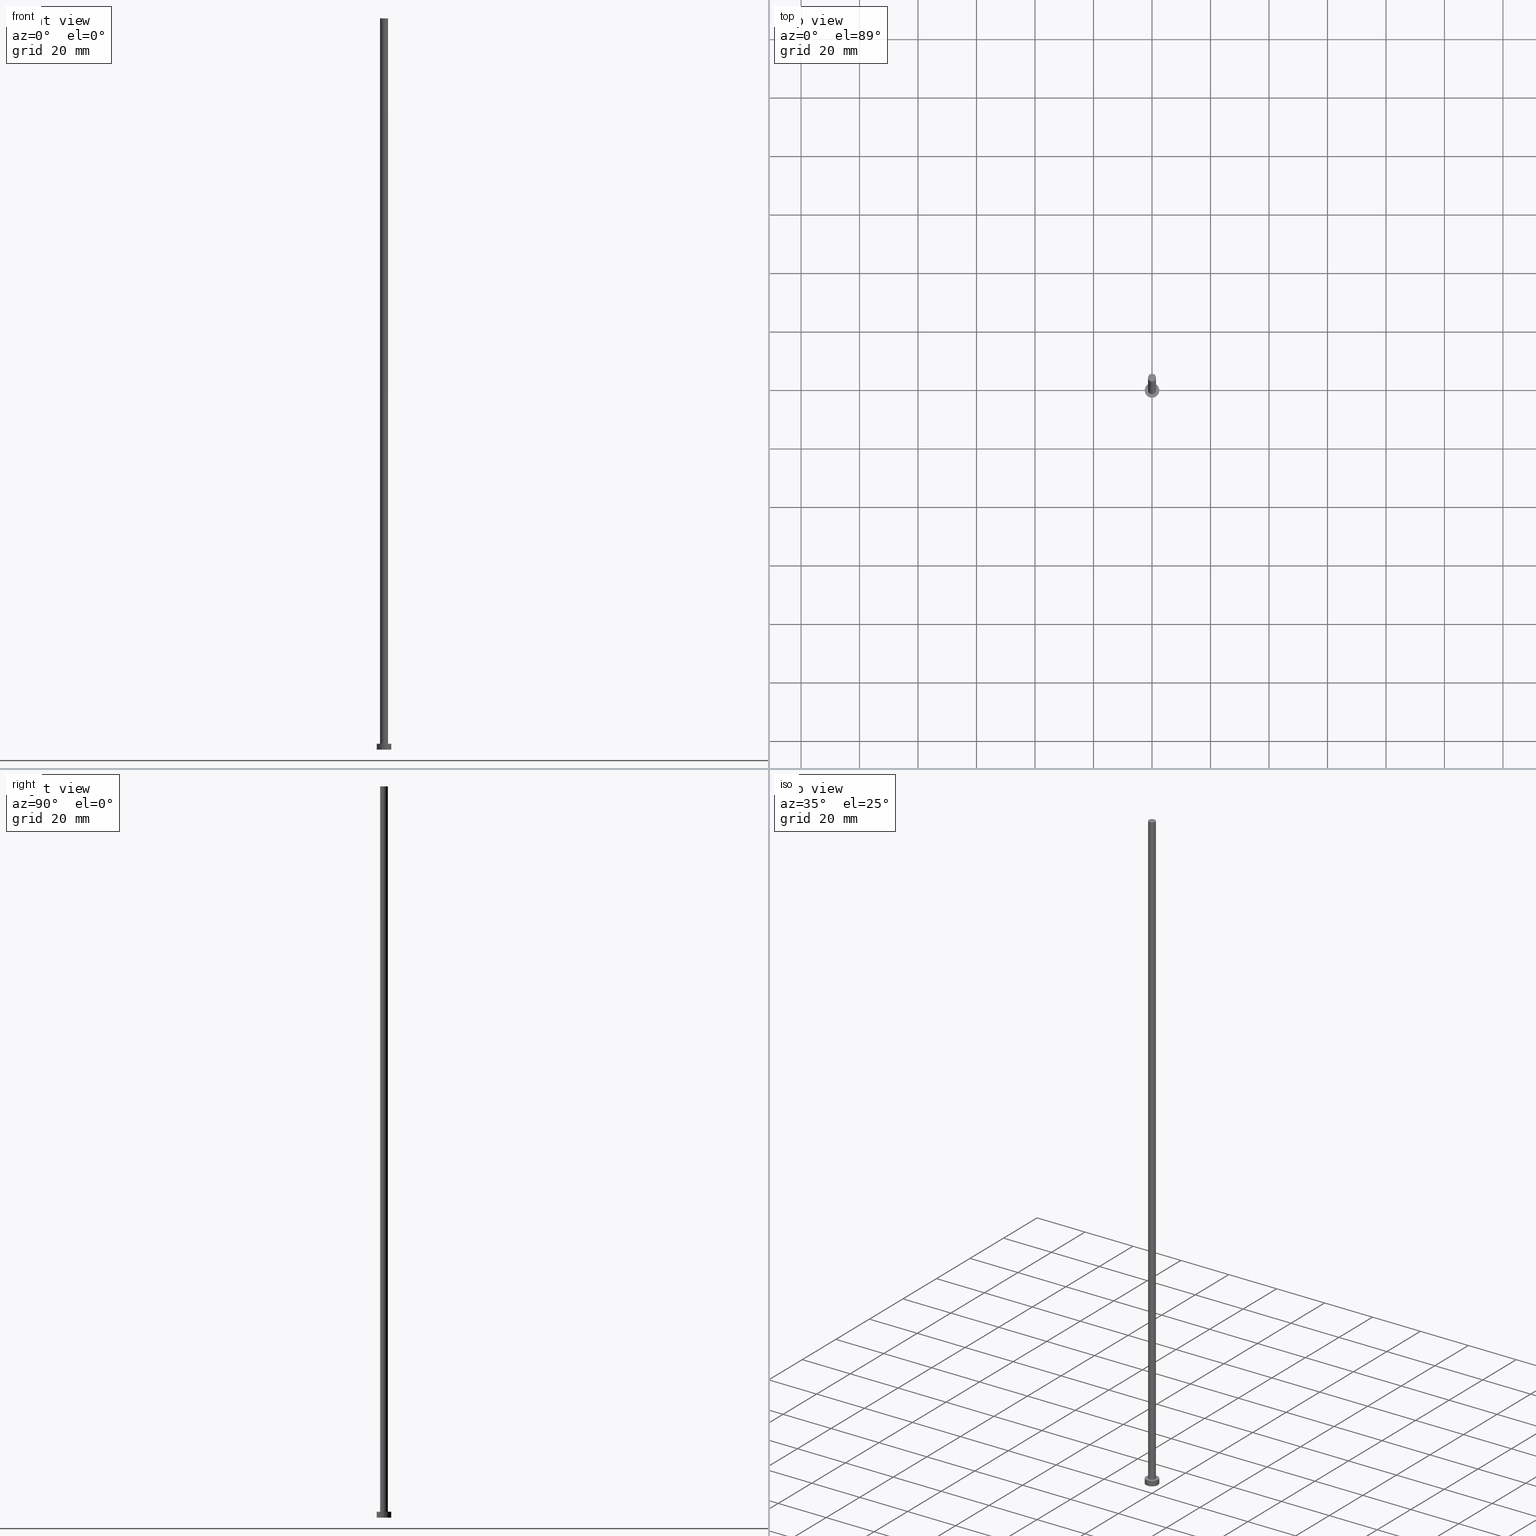
[diagram: canonical four-view strip — front | top / right | iso, engineering-drawing reading convention]
A machine part, canonical four-view strip (front | top / right | iso — engineering-drawing reading convention). The complete STEP part file that produces these views, byte-faithful:
ISO-10303-21;
HEADER;
FILE_DESCRIPTION (( 'STEP AP203' ),
    '1' );
FILE_NAME ('0690.STEP',
    '2026-02-06T12:30:59',
    ( '' ),
    ( '' ),
    'SwSTEP 2.0',
    'SolidWorks 2019',
    '' );
FILE_SCHEMA (( 'CONFIG_CONTROL_DESIGN' ));
ENDSEC;

DATA;
#1 = CIRCLE ( 'NONE', #121, 2.500000000000000000 ) ;
#2 = DATE_AND_TIME ( #64, #255 ) ;
#3 = CARTESIAN_POINT ( 'NONE',  ( 0.000000000000000000, 0.000000000000000000, 250.0000000000000000 ) ) ;
#4 = CALENDAR_DATE ( 2026, 6, 2 ) ;
#5 = PLANE ( 'NONE',  #136 ) ;
#6 = MECHANICAL_CONTEXT ( 'NONE', #252, 'mechanical' ) ;
#7 = ORIENTED_EDGE ( 'NONE', *, *, #219, .F. ) ;
#8 = PERSON_AND_ORGANIZATION ( #66, #128 ) ;
#9 = ADVANCED_FACE ( 'NONE', ( #11, #197 ), #239, .T. ) ;
#10 = CARTESIAN_POINT ( 'NONE',  ( 0.000000000000000000, 0.000000000000000000, 250.0000000000000000 ) ) ;
#11 = FACE_BOUND ( 'NONE', #31, .T. ) ;
#12 = CARTESIAN_POINT ( 'NONE',  ( 2.500000000000000000, 3.061616997868383141E-16, 2.000000000000000000 ) ) ;
#13 = ORIENTED_EDGE ( 'NONE', *, *, #146, .T. ) ;
#14 = DIRECTION ( 'NONE',  ( 1.000000000000000000, 0.000000000000000000, 0.000000000000000000 ) ) ;
#15 = CARTESIAN_POINT ( 'NONE',  ( 0.000000000000000000, 0.000000000000000000, 0.000000000000000000 ) ) ;
#16 = EDGE_CURVE ( 'NONE', #205, #94, #1, .T. ) ;
#17 = VECTOR ( 'NONE', #90, 1000.000000000000000 ) ;
#18 = MANIFOLD_SOLID_BREP ( 'P�idat vysunut�m3', #24 ) ;
#19 = DESIGN_CONTEXT ( 'detailed design', #201, 'design' ) ;
#20 = CALENDAR_DATE ( 2026, 6, 2 ) ;
#21 = PRODUCT_DEFINITION ( 'NEZN�M�', '', #46, #19 ) ;
#22 = DIRECTION ( 'NONE',  ( 0.000000000000000000, 0.000000000000000000, 1.000000000000000000 ) ) ;
#23 = COORDINATED_UNIVERSAL_TIME_OFFSET ( 1, 0, .AHEAD. ) ;
#24 = CLOSED_SHELL ( 'NONE', ( #95, #79, #55, #9, #161, #215, #223 ) ) ;
#25 = APPROVAL_STATUS ( 'not_yet_approved' ) ;
#26 = EDGE_CURVE ( 'NONE', #175, #205, #212, .T. ) ;
#27 = CARTESIAN_POINT ( 'NONE',  ( 0.000000000000000000, 0.000000000000000000, 250.0000000000000000 ) ) ;
#28 = PERSON_AND_ORGANIZATION ( #66, #128 ) ;
#29 = CARTESIAN_POINT ( 'NONE',  ( -2.500000000000000000, 0.000000000000000000, 0.000000000000000000 ) ) ;
#30 = AXIS2_PLACEMENT_3D ( 'NONE', #218, #50, #35 ) ;
#31 = EDGE_LOOP ( 'NONE', ( #7, #236 ) ) ;
#32 = ORIENTED_EDGE ( 'NONE', *, *, #26, .F. ) ;
#33 = CARTESIAN_POINT ( 'NONE',  ( -2.500000000000000000, 0.000000000000000000, 2.000000000000000000 ) ) ;
#34 = UNCERTAINTY_MEASURE_WITH_UNIT (LENGTH_MEASURE( 1.000000000000000082E-05 ), #166, 'distance_accuracy_value', 'NONE');
#35 = DIRECTION ( 'NONE',  ( -1.000000000000000000, 0.000000000000000000, 0.000000000000000000 ) ) ;
#36 = DIRECTION ( 'NONE',  ( -0.000000000000000000, -0.000000000000000000, -1.000000000000000000 ) ) ;
#37 = CIRCLE ( 'NONE', #97, 1.350000000000000089 ) ;
#38 = CIRCLE ( 'NONE', #185, 1.350000000000000089 ) ;
#39 = CC_DESIGN_DATE_AND_TIME_ASSIGNMENT ( #210, #108, ( #249 ) ) ;
#40 = CC_DESIGN_APPROVAL ( #60, ( #249 ) ) ;
#41 = DIRECTION ( 'NONE',  ( 1.000000000000000000, 0.000000000000000000, 0.000000000000000000 ) ) ;
#42 = DIRECTION ( 'NONE',  ( 1.000000000000000000, 0.000000000000000000, -0.000000000000000000 ) ) ;
#43 = APPLICATION_PROTOCOL_DEFINITION ( 'international standard', 'config_control_design', 1994, #252 ) ;
#44 = EDGE_CURVE ( 'NONE', #84, #232, #37, .T. ) ;
#45 = DATE_TIME_ROLE ( 'creation_date' ) ;
#46 = PRODUCT_DEFINITION_FORMATION_WITH_SPECIFIED_SOURCE ( 'LIBOVOLN�', '', #159, .NOT_KNOWN. ) ;
#47 = DIRECTION ( 'NONE',  ( 1.000000000000000000, 0.000000000000000000, -0.000000000000000000 ) ) ;
#48 = PERSON_AND_ORGANIZATION_ROLE ( 'creator' ) ;
#49 = PLANE ( 'NONE',  #222 ) ;
#50 = DIRECTION ( 'NONE',  ( -0.000000000000000000, -0.000000000000000000, -1.000000000000000000 ) ) ;
#51 = CIRCLE ( 'NONE', #82, 1.350000000000000089 ) ;
#52 = ORIENTED_EDGE ( 'NONE', *, *, #44, .T. ) ;
#53 = VERTEX_POINT ( 'NONE', #33 ) ;
#54 = DIRECTION ( 'NONE',  ( 1.000000000000000000, 0.000000000000000000, -0.000000000000000000 ) ) ;
#55 = ADVANCED_FACE ( 'NONE', ( #140 ), #254, .T. ) ;
#56 = CC_DESIGN_PERSON_AND_ORGANIZATION_ASSIGNMENT ( #100, #48, ( #46 ) ) ;
#57 = APPROVAL_PERSON_ORGANIZATION ( #8, #60, #243 ) ;
#58 = PRODUCT_RELATED_PRODUCT_CATEGORY ( 'detail', '', ( #159 ) ) ;
#59 = CC_DESIGN_SECURITY_CLASSIFICATION ( #249, ( #46 ) ) ;
#60 = APPROVAL ( #123, 'NEUR�EN�' ) ;
#61 = AXIS2_PLACEMENT_3D ( 'NONE', #198, #126, #206 ) ;
#62 = APPROVAL_DATE_TIME ( #2, #60 ) ;
#63 = FACE_OUTER_BOUND ( 'NONE', #228, .T. ) ;
#64 = CALENDAR_DATE ( 2026, 6, 2 ) ;
#65 = DIRECTION ( 'NONE',  ( 1.000000000000000000, 0.000000000000000000, 0.000000000000000000 ) ) ;
#66 = PERSON ( 'NEUR�EN�', 'NEUR�EN�', 'NEUR�EN�', ('NEUR�EN�'), ('NEUR�EN�'), ('NEUR�EN�') ) ;
#67 = LINE ( 'NONE', #213, #17 ) ;
#68 = APPLICATION_PROTOCOL_DEFINITION ( 'international standard', 'config_control_design', 1994, #201 ) ;
#69 = VERTEX_POINT ( 'NONE', #217 ) ;
#70 = DIRECTION ( 'NONE',  ( 1.000000000000000000, 0.000000000000000000, 0.000000000000000000 ) ) ;
#71 = VERTEX_POINT ( 'NONE', #73 ) ;
#72 = VECTOR ( 'NONE', #88, 1000.000000000000000 ) ;
#73 = CARTESIAN_POINT ( 'NONE',  ( -1.350000000000000089, 0.000000000000000000, 250.0000000000000000 ) ) ;
#74 = FACE_OUTER_BOUND ( 'NONE', #225, .T. ) ;
#75 = EDGE_CURVE ( 'NONE', #175, #53, #76, .T. ) ;
#76 = CIRCLE ( 'NONE', #179, 2.500000000000000000 ) ;
#77 = ORIENTED_EDGE ( 'NONE', *, *, #26, .T. ) ;
#78 = ORIENTED_EDGE ( 'NONE', *, *, #96, .F. ) ;
#79 = ADVANCED_FACE ( 'NONE', ( #74 ), #117, .T. ) ;
#80 = DIRECTION ( 'NONE',  ( 0.000000000000000000, 0.000000000000000000, 1.000000000000000000 ) ) ;
#81 = CARTESIAN_POINT ( 'NONE',  ( 0.000000000000000000, 0.000000000000000000, 0.000000000000000000 ) ) ;
#82 = AXIS2_PLACEMENT_3D ( 'NONE', #10, #169, #153 ) ;
#83 = DATE_AND_TIME ( #231, #194 ) ;
#84 = VERTEX_POINT ( 'NONE', #133 ) ;
#85 = DIRECTION ( 'NONE',  ( -0.000000000000000000, -0.000000000000000000, -1.000000000000000000 ) ) ;
#86 = PERSON_AND_ORGANIZATION ( #66, #128 ) ;
#87 = APPROVAL_STATUS ( 'not_yet_approved' ) ;
#88 = DIRECTION ( 'NONE',  ( -0.000000000000000000, -0.000000000000000000, -1.000000000000000000 ) ) ;
#89 = EDGE_LOOP ( 'NONE', ( #32, #109, #158, #115 ) ) ;
#90 = DIRECTION ( 'NONE',  ( -0.000000000000000000, -0.000000000000000000, -1.000000000000000000 ) ) ;
#91 = ORIENTED_EDGE ( 'NONE', *, *, #75, .F. ) ;
#92 = CARTESIAN_POINT ( 'NONE',  ( 0.000000000000000000, 0.000000000000000000, 2.000000000000000000 ) ) ;
#93 = DIRECTION ( 'NONE',  ( 0.000000000000000000, 0.000000000000000000, 1.000000000000000000 ) ) ;
#94 = VERTEX_POINT ( 'NONE', #29 ) ;
#95 = ADVANCED_FACE ( 'NONE', ( #235 ), #238, .T. ) ;
#96 = EDGE_CURVE ( 'NONE', #71, #69, #143, .T. ) ;
#97 = AXIS2_PLACEMENT_3D ( 'NONE', #92, #93, #156 ) ;
#98 = CC_DESIGN_APPROVAL ( #182, ( #46 ) ) ;
#99 = CC_DESIGN_PERSON_AND_ORGANIZATION_ASSIGNMENT ( #28, #164, ( #21 ) ) ;
#100 = PERSON_AND_ORGANIZATION ( #66, #128 ) ;
#101 = CC_DESIGN_PERSON_AND_ORGANIZATION_ASSIGNMENT ( #187, #162, ( #249 ) ) ;
#102 = COORDINATED_UNIVERSAL_TIME_OFFSET ( 1, 0, .AHEAD. ) ;
#103 = CARTESIAN_POINT ( 'NONE',  ( -1.350000000000000089, 0.000000000000000000, 2.000000000000000000 ) ) ;
#104 = APPROVAL_PERSON_ORGANIZATION ( #224, #182, #129 ) ;
#105 = DIRECTION ( 'NONE',  ( -1.000000000000000000, 0.000000000000000000, 0.000000000000000000 ) ) ;
#106 = PERSON_AND_ORGANIZATION_ROLE ( 'design_supplier' ) ;
#107 = DIRECTION ( 'NONE',  ( 1.000000000000000000, 0.000000000000000000, 0.000000000000000000 ) ) ;
#108 = DATE_TIME_ROLE ( 'classification_date' ) ;
#109 = ORIENTED_EDGE ( 'NONE', *, *, #146, .F. ) ;
#110 = DIRECTION ( 'NONE',  ( 0.000000000000000000, 0.000000000000000000, 1.000000000000000000 ) ) ;
#111 =( NAMED_UNIT ( * ) PLANE_ANGLE_UNIT ( ) SI_UNIT ( $, .RADIAN. ) );
#112 = DIRECTION ( 'NONE',  ( 0.000000000000000000, 0.000000000000000000, 1.000000000000000000 ) ) ;
#113 = ORIENTED_EDGE ( 'NONE', *, *, #167, .T. ) ;
#114 = EDGE_LOOP ( 'NONE', ( #214, #120 ) ) ;
#115 = ORIENTED_EDGE ( 'NONE', *, *, #202, .T. ) ;
#116 = APPROVAL_PERSON_ORGANIZATION ( #86, #118, #145 ) ;
#117 = CYLINDRICAL_SURFACE ( 'NONE', #176, 2.500000000000000000 ) ;
#118 = APPROVAL ( #25, 'NEUR�EN�' ) ;
#119 = PRODUCT_DEFINITION_SHAPE ( 'NONE', 'NONE',  #21 ) ;
#120 = ORIENTED_EDGE ( 'NONE', *, *, #16, .F. ) ;
#121 = AXIS2_PLACEMENT_3D ( 'NONE', #15, #112, #14 ) ;
#122 = LOCAL_TIME ( 13, 30, 59.00000000000000000, #131 ) ;
#123 = APPROVAL_STATUS ( 'not_yet_approved' ) ;
#124 = PERSON_AND_ORGANIZATION ( #66, #128 ) ;
#125 = ORIENTED_EDGE ( 'NONE', *, *, #196, .T. ) ;
#126 = DIRECTION ( 'NONE',  ( 0.000000000000000000, 0.000000000000000000, 1.000000000000000000 ) ) ;
#127 = AXIS2_PLACEMENT_3D ( 'NONE', #250, #230, #245 ) ;
#128 = ORGANIZATION ( 'NEUR�EN�', 'NEUR�EN�', '' ) ;
#129 = APPROVAL_ROLE ( '' ) ;
#130 = DIRECTION ( 'NONE',  ( 0.000000000000000000, 0.000000000000000000, 1.000000000000000000 ) ) ;
#131 = COORDINATED_UNIVERSAL_TIME_OFFSET ( 1, 0, .AHEAD. ) ;
#132 = ORIENTED_EDGE ( 'NONE', *, *, #96, .T. ) ;
#133 = CARTESIAN_POINT ( 'NONE',  ( 1.350000000000000089, 1.653273178848926867E-16, 2.000000000000000000 ) ) ;
#134 = CARTESIAN_POINT ( 'NONE',  ( -2.500000000000000000, 0.000000000000000000, 2.000000000000000000 ) ) ;
#135 = ORIENTED_EDGE ( 'NONE', *, *, #178, .T. ) ;
#136 = AXIS2_PLACEMENT_3D ( 'NONE', #81, #130, #47 ) ;
#137 = ORIENTED_EDGE ( 'NONE', *, *, #196, .F. ) ;
#138 = DIRECTION ( 'NONE',  ( -1.000000000000000000, 0.000000000000000000, 0.000000000000000000 ) ) ;
#139 = DIRECTION ( 'NONE',  ( -1.000000000000000000, 0.000000000000000000, 0.000000000000000000 ) ) ;
#140 = FACE_OUTER_BOUND ( 'NONE', #89, .T. ) ;
#141 =( GEOMETRIC_REPRESENTATION_CONTEXT ( 3 ) GLOBAL_UNCERTAINTY_ASSIGNED_CONTEXT ( ( #34 ) ) GLOBAL_UNIT_ASSIGNED_CONTEXT ( ( #166, #111, #207 ) ) REPRESENTATION_CONTEXT ( 'NONE', 'WORKASPACE' ) );
#142 = ADVANCED_BREP_SHAPE_REPRESENTATION ( '0690', ( #18, #170 ), #141 ) ;
#143 = CIRCLE ( 'NONE', #61, 1.350000000000000089 ) ;
#144 = AXIS2_PLACEMENT_3D ( 'NONE', #237, #251, #138 ) ;
#145 = APPROVAL_ROLE ( '' ) ;
#146 = EDGE_CURVE ( 'NONE', #53, #175, #216, .T. ) ;
#147 = CARTESIAN_POINT ( 'NONE',  ( 0.000000000000000000, 0.000000000000000000, 2.000000000000000000 ) ) ;
#148 = PERSON_AND_ORGANIZATION_ROLE ( 'design_owner' ) ;
#149 = CARTESIAN_POINT ( 'NONE',  ( 0.000000000000000000, 0.000000000000000000, 2.000000000000000000 ) ) ;
#150 = LINE ( 'NONE', #209, #163 ) ;
#151 = VECTOR ( 'NONE', #171, 1000.000000000000000 ) ;
#152 = COORDINATED_UNIVERSAL_TIME_OFFSET ( 1, 0, .AHEAD. ) ;
#153 = DIRECTION ( 'NONE',  ( 1.000000000000000000, 0.000000000000000000, 0.000000000000000000 ) ) ;
#154 = ORIENTED_EDGE ( 'NONE', *, *, #16, .T. ) ;
#155 = CC_DESIGN_PERSON_AND_ORGANIZATION_ASSIGNMENT ( #208, #106, ( #46 ) ) ;
#156 = DIRECTION ( 'NONE',  ( 1.000000000000000000, 0.000000000000000000, 0.000000000000000000 ) ) ;
#157 = CARTESIAN_POINT ( 'NONE',  ( 0.000000000000000000, 0.000000000000000000, 2.000000000000000000 ) ) ;
#158 = ORIENTED_EDGE ( 'NONE', *, *, #242, .T. ) ;
#159 = PRODUCT ( '0690', '0690', '', ( #6 ) ) ;
#160 = LOCAL_TIME ( 13, 30, 59.00000000000000000, #102 ) ;
#161 = ADVANCED_FACE ( 'NONE', ( #193 ), #5, .F. ) ;
#162 = PERSON_AND_ORGANIZATION_ROLE ( 'classification_officer' ) ;
#163 = VECTOR ( 'NONE', #85, 1000.000000000000000 ) ;
#164 = PERSON_AND_ORGANIZATION_ROLE ( 'creator' ) ;
#165 = ORIENTED_EDGE ( 'NONE', *, *, #167, .F. ) ;
#166 =( LENGTH_UNIT ( ) NAMED_UNIT ( * ) SI_UNIT ( .MILLI., .METRE. ) );
#167 = EDGE_CURVE ( 'NONE', #69, #84, #67, .T. ) ;
#168 = SECURITY_CLASSIFICATION_LEVEL ( 'unclassified' ) ;
#169 = DIRECTION ( 'NONE',  ( 0.000000000000000000, 0.000000000000000000, 1.000000000000000000 ) ) ;
#170 = AXIS2_PLACEMENT_3D ( 'NONE', #247, #80, #41 ) ;
#171 = DIRECTION ( 'NONE',  ( -0.000000000000000000, -0.000000000000000000, -1.000000000000000000 ) ) ;
#172 = CYLINDRICAL_SURFACE ( 'NONE', #221, 1.350000000000000089 ) ;
#173 = ORIENTED_EDGE ( 'NONE', *, *, #242, .F. ) ;
#174 = CARTESIAN_POINT ( 'NONE',  ( 0.000000000000000000, 0.000000000000000000, 2.000000000000000000 ) ) ;
#175 = VERTEX_POINT ( 'NONE', #12 ) ;
#176 = AXIS2_PLACEMENT_3D ( 'NONE', #220, #36, #139 ) ;
#177 = EDGE_LOOP ( 'NONE', ( #137, #113, #52, #211 ) ) ;
#178 = EDGE_CURVE ( 'NONE', #71, #232, #150, .T. ) ;
#179 = AXIS2_PLACEMENT_3D ( 'NONE', #157, #110, #70 ) ;
#180 = CC_DESIGN_APPROVAL ( #118, ( #21 ) ) ;
#181 = COORDINATED_UNIVERSAL_TIME_OFFSET ( 1, 0, .AHEAD. ) ;
#182 = APPROVAL ( #87, 'NEUR�EN�' ) ;
#183 = DIRECTION ( 'NONE',  ( -0.000000000000000000, -0.000000000000000000, -1.000000000000000000 ) ) ;
#184 = CALENDAR_DATE ( 2026, 6, 2 ) ;
#185 = AXIS2_PLACEMENT_3D ( 'NONE', #149, #233, #107 ) ;
#186 = CARTESIAN_POINT ( 'NONE',  ( 2.500000000000000000, 3.061616997868383141E-16, 0.000000000000000000 ) ) ;
#187 = PERSON_AND_ORGANIZATION ( #66, #128 ) ;
#188 = ORIENTED_EDGE ( 'NONE', *, *, #75, .T. ) ;
#189 = LINE ( 'NONE', #134, #72 ) ;
#190 = DATE_AND_TIME ( #184, #160 ) ;
#191 = DIRECTION ( 'NONE',  ( 0.000000000000000000, 0.000000000000000000, 1.000000000000000000 ) ) ;
#192 = EDGE_LOOP ( 'NONE', ( #13, #188 ) ) ;
#193 = FACE_OUTER_BOUND ( 'NONE', #114, .T. ) ;
#194 = LOCAL_TIME ( 13, 30, 59.00000000000000000, #152 ) ;
#195 = CARTESIAN_POINT ( 'NONE',  ( 2.500000000000000000, 3.061616997868383141E-16, 2.000000000000000000 ) ) ;
#196 = EDGE_CURVE ( 'NONE', #69, #71, #51, .T. ) ;
#197 = FACE_OUTER_BOUND ( 'NONE', #192, .T. ) ;
#198 = CARTESIAN_POINT ( 'NONE',  ( 0.000000000000000000, 0.000000000000000000, 250.0000000000000000 ) ) ;
#199 = LOCAL_TIME ( 13, 30, 59.00000000000000000, #23 ) ;
#200 = CIRCLE ( 'NONE', #127, 2.500000000000000000 ) ;
#201 = APPLICATION_CONTEXT ( 'configuration controlled 3d designs of mechanical parts and assemblies' ) ;
#202 = EDGE_CURVE ( 'NONE', #94, #205, #200, .T. ) ;
#203 = EDGE_LOOP ( 'NONE', ( #132, #125 ) ) ;
#204 = APPROVAL_DATE_TIME ( #83, #182 ) ;
#205 = VERTEX_POINT ( 'NONE', #186 ) ;
#206 = DIRECTION ( 'NONE',  ( 1.000000000000000000, 0.000000000000000000, 0.000000000000000000 ) ) ;
#207 =( NAMED_UNIT ( * ) SI_UNIT ( $, .STERADIAN. ) SOLID_ANGLE_UNIT ( ) );
#208 = PERSON_AND_ORGANIZATION ( #66, #128 ) ;
#209 = CARTESIAN_POINT ( 'NONE',  ( -1.350000000000000089, 0.000000000000000000, 250.0000000000000000 ) ) ;
#210 = DATE_AND_TIME ( #20, #122 ) ;
#211 = ORIENTED_EDGE ( 'NONE', *, *, #178, .F. ) ;
#212 = LINE ( 'NONE', #195, #151 ) ;
#213 = CARTESIAN_POINT ( 'NONE',  ( 1.350000000000000089, 1.653273178848926867E-16, 250.0000000000000000 ) ) ;
#214 = ORIENTED_EDGE ( 'NONE', *, *, #202, .F. ) ;
#215 = ADVANCED_FACE ( 'NONE', ( #63 ), #172, .T. ) ;
#216 = CIRCLE ( 'NONE', #244, 2.500000000000000000 ) ;
#217 = CARTESIAN_POINT ( 'NONE',  ( 1.350000000000000089, 1.653273178848926867E-16, 250.0000000000000000 ) ) ;
#218 = CARTESIAN_POINT ( 'NONE',  ( 0.000000000000000000, 0.000000000000000000, 250.0000000000000000 ) ) ;
#219 = EDGE_CURVE ( 'NONE', #232, #84, #38, .T. ) ;
#220 = CARTESIAN_POINT ( 'NONE',  ( 0.000000000000000000, 0.000000000000000000, 2.000000000000000000 ) ) ;
#221 = AXIS2_PLACEMENT_3D ( 'NONE', #27, #183, #105 ) ;
#222 = AXIS2_PLACEMENT_3D ( 'NONE', #3, #191, #42 ) ;
#223 = ADVANCED_FACE ( 'NONE', ( #226 ), #49, .T. ) ;
#224 = PERSON_AND_ORGANIZATION ( #66, #128 ) ;
#225 = EDGE_LOOP ( 'NONE', ( #91, #77, #154, #173 ) ) ;
#226 = FACE_OUTER_BOUND ( 'NONE', #203, .T. ) ;
#227 = SHAPE_DEFINITION_REPRESENTATION ( #119, #142 ) ;
#228 = EDGE_LOOP ( 'NONE', ( #165, #78, #135, #248 ) ) ;
#229 = APPROVAL_DATE_TIME ( #190, #118 ) ;
#230 = DIRECTION ( 'NONE',  ( 0.000000000000000000, 0.000000000000000000, 1.000000000000000000 ) ) ;
#231 = CALENDAR_DATE ( 2026, 6, 2 ) ;
#232 = VERTEX_POINT ( 'NONE', #103 ) ;
#233 = DIRECTION ( 'NONE',  ( 0.000000000000000000, 0.000000000000000000, 1.000000000000000000 ) ) ;
#234 = CC_DESIGN_PERSON_AND_ORGANIZATION_ASSIGNMENT ( #124, #148, ( #159 ) ) ;
#235 = FACE_OUTER_BOUND ( 'NONE', #177, .T. ) ;
#236 = ORIENTED_EDGE ( 'NONE', *, *, #44, .F. ) ;
#237 = CARTESIAN_POINT ( 'NONE',  ( 0.000000000000000000, 0.000000000000000000, 2.000000000000000000 ) ) ;
#238 = CYLINDRICAL_SURFACE ( 'NONE', #30, 1.350000000000000089 ) ;
#239 = PLANE ( 'NONE',  #241 ) ;
#240 = CC_DESIGN_DATE_AND_TIME_ASSIGNMENT ( #246, #45, ( #21 ) ) ;
#241 = AXIS2_PLACEMENT_3D ( 'NONE', #174, #253, #54 ) ;
#242 = EDGE_CURVE ( 'NONE', #53, #94, #189, .T. ) ;
#243 = APPROVAL_ROLE ( '' ) ;
#244 = AXIS2_PLACEMENT_3D ( 'NONE', #147, #22, #65 ) ;
#245 = DIRECTION ( 'NONE',  ( 1.000000000000000000, 0.000000000000000000, 0.000000000000000000 ) ) ;
#246 = DATE_AND_TIME ( #4, #199 ) ;
#247 = CARTESIAN_POINT ( 'NONE',  ( 0.000000000000000000, 0.000000000000000000, 0.000000000000000000 ) ) ;
#248 = ORIENTED_EDGE ( 'NONE', *, *, #219, .T. ) ;
#249 = SECURITY_CLASSIFICATION ( '', '', #168 ) ;
#250 = CARTESIAN_POINT ( 'NONE',  ( 0.000000000000000000, 0.000000000000000000, 0.000000000000000000 ) ) ;
#251 = DIRECTION ( 'NONE',  ( -0.000000000000000000, -0.000000000000000000, -1.000000000000000000 ) ) ;
#252 = APPLICATION_CONTEXT ( 'configuration controlled 3d designs of mechanical parts and assemblies' ) ;
#253 = DIRECTION ( 'NONE',  ( 0.000000000000000000, 0.000000000000000000, 1.000000000000000000 ) ) ;
#254 = CYLINDRICAL_SURFACE ( 'NONE', #144, 2.500000000000000000 ) ;
#255 = LOCAL_TIME ( 13, 30, 59.00000000000000000, #181 ) ;
ENDSEC;
END-ISO-10303-21;
